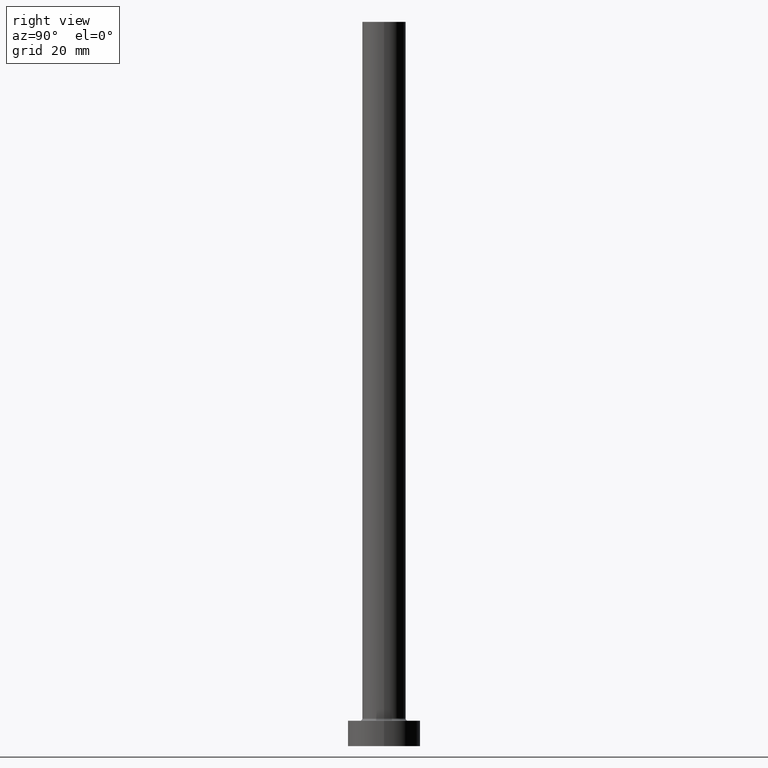
[diagram: clean part render]
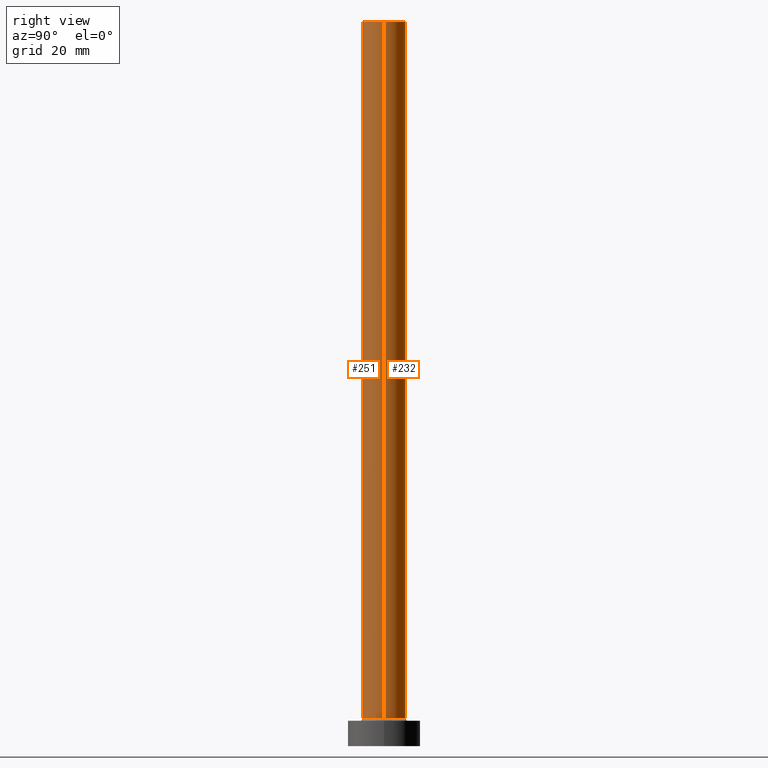
[diagram: same view with one multi-face feature highlighted, each face labeled with its STEP entity id]
A machine part, right view. The highlighted faces form ONE feature: a constant-radius fillet chain: 2 tangent blend faces with common blend radius 6 mm. The faces share edges in the B-rep.
Their STEP definitions:
[1] entity #232 (Cylinder):
#1 = DIRECTION ( 'NONE',  ( 0.000000000000000000, 0.000000000000000000, 1.000000000000000000 ) ) ;
#4 = VECTOR ( 'NONE', #361, 1000.000000000000000 ) ;
#5 = CIRCLE ( 'NONE', #447, 6.000000000000000888 ) ;
#9 = CARTESIAN_POINT ( 'NONE',  ( 6.000000000000000888, 7.347880794884120722E-16, 200.0000000000000000 ) ) ;
#20 = DIRECTION ( 'NONE',  ( -0.000000000000000000, -0.000000000000000000, -1.000000000000000000 ) ) ;
#21 = VERTEX_POINT ( 'NONE', #141 ) ;
#40 = EDGE_CURVE ( 'NONE', #392, #21, #237, .T. ) ;
#55 = CARTESIAN_POINT ( 'NONE',  ( -6.000000000000000888, 0.000000000000000000, 200.0000000000000000 ) ) ;
#90 = CARTESIAN_POINT ( 'NONE',  ( 6.000000000000000888, 7.347880794884120722E-16, 200.0000000000000000 ) ) ;
#117 = AXIS2_PLACEMENT_3D ( 'NONE', #266, #20, #443 ) ;
#141 = CARTESIAN_POINT ( 'NONE',  ( -6.000000000000000888, 0.000000000000000000, 7.700000000000012612 ) ) ;
#143 = LINE ( 'NONE', #288, #4 ) ;
#153 = LINE ( 'NONE', #90, #176 ) ;
#176 = VECTOR ( 'NONE', #196, 1000.000000000000000 ) ;
#196 = DIRECTION ( 'NONE',  ( -0.000000000000000000, -0.000000000000000000, -1.000000000000000000 ) ) ;
#197 = VERTEX_POINT ( 'NONE', #9 ) ;
#201 = EDGE_CURVE ( 'NONE', #234, #21, #143, .T. ) ;
#205 = CARTESIAN_POINT ( 'NONE',  ( 0.000000000000000000, 0.000000000000000000, 7.700000000000012612 ) ) ;
#207 = ORIENTED_EDGE ( 'NONE', *, *, #40, .T. ) ;
#228 = CARTESIAN_POINT ( 'NONE',  ( 6.000000000000000888, 7.347880794884120722E-16, 7.700000000000012612 ) ) ;
#232 = ADVANCED_FACE ( 'NONE', ( #441 ), #379, .T. ) ;
#234 = VERTEX_POINT ( 'NONE', #55 ) ;
#236 = ORIENTED_EDGE ( 'NONE', *, *, #436, .F. ) ;
#237 = CIRCLE ( 'NONE', #402, 6.000000000000000888 ) ;
#245 = CARTESIAN_POINT ( 'NONE',  ( 0.000000000000000000, 0.000000000000000000, 200.0000000000000000 ) ) ;
#266 = CARTESIAN_POINT ( 'NONE',  ( 0.000000000000000000, 0.000000000000000000, 200.0000000000000000 ) ) ;
#270 = EDGE_CURVE ( 'NONE', #197, #392, #153, .T. ) ;
#288 = CARTESIAN_POINT ( 'NONE',  ( -6.000000000000000888, 0.000000000000000000, 200.0000000000000000 ) ) ;
#312 = ORIENTED_EDGE ( 'NONE', *, *, #270, .T. ) ;
#337 = EDGE_LOOP ( 'NONE', ( #236, #312, #207, #386 ) ) ;
#344 = DIRECTION ( 'NONE',  ( 0.000000000000000000, 0.000000000000000000, 1.000000000000000000 ) ) ;
#361 = DIRECTION ( 'NONE',  ( -0.000000000000000000, -0.000000000000000000, -1.000000000000000000 ) ) ;
#379 = CYLINDRICAL_SURFACE ( 'NONE', #117, 6.000000000000000888 ) ;
#386 = ORIENTED_EDGE ( 'NONE', *, *, #201, .F. ) ;
#390 = DIRECTION ( 'NONE',  ( 1.000000000000000000, 0.000000000000000000, 0.000000000000000000 ) ) ;
#392 = VERTEX_POINT ( 'NONE', #228 ) ;
#402 = AXIS2_PLACEMENT_3D ( 'NONE', #205, #344, #390 ) ;
#436 = EDGE_CURVE ( 'NONE', #197, #234, #5, .T. ) ;
#441 = FACE_OUTER_BOUND ( 'NONE', #337, .T. ) ;
#443 = DIRECTION ( 'NONE',  ( -1.000000000000000000, 0.000000000000000000, 0.000000000000000000 ) ) ;
#447 = AXIS2_PLACEMENT_3D ( 'NONE', #245, #1, #460 ) ;
#460 = DIRECTION ( 'NONE',  ( 1.000000000000000000, 0.000000000000000000, 0.000000000000000000 ) ) ;
[2] entity #251 (Cylinder):
#4 = VECTOR ( 'NONE', #361, 1000.000000000000000 ) ;
#6 = EDGE_CURVE ( 'NONE', #21, #392, #407, .T. ) ;
#9 = CARTESIAN_POINT ( 'NONE',  ( 6.000000000000000888, 7.347880794884120722E-16, 200.0000000000000000 ) ) ;
#21 = VERTEX_POINT ( 'NONE', #141 ) ;
#28 = ORIENTED_EDGE ( 'NONE', *, *, #129, .F. ) ;
#32 = CARTESIAN_POINT ( 'NONE',  ( 0.000000000000000000, 0.000000000000000000, 7.700000000000012612 ) ) ;
#48 = AXIS2_PLACEMENT_3D ( 'NONE', #73, #220, #434 ) ;
#55 = CARTESIAN_POINT ( 'NONE',  ( -6.000000000000000888, 0.000000000000000000, 200.0000000000000000 ) ) ;
#64 = DIRECTION ( 'NONE',  ( 1.000000000000000000, 0.000000000000000000, 0.000000000000000000 ) ) ;
#71 = DIRECTION ( 'NONE',  ( 0.000000000000000000, 0.000000000000000000, 1.000000000000000000 ) ) ;
#73 = CARTESIAN_POINT ( 'NONE',  ( 0.000000000000000000, 0.000000000000000000, 200.0000000000000000 ) ) ;
#88 = CARTESIAN_POINT ( 'NONE',  ( 0.000000000000000000, 0.000000000000000000, 200.0000000000000000 ) ) ;
#90 = CARTESIAN_POINT ( 'NONE',  ( 6.000000000000000888, 7.347880794884120722E-16, 200.0000000000000000 ) ) ;
#93 = FACE_OUTER_BOUND ( 'NONE', #166, .T. ) ;
#119 = DIRECTION ( 'NONE',  ( -0.000000000000000000, -0.000000000000000000, -1.000000000000000000 ) ) ;
#129 = EDGE_CURVE ( 'NONE', #234, #197, #373, .T. ) ;
#132 = AXIS2_PLACEMENT_3D ( 'NONE', #88, #119, #336 ) ;
#141 = CARTESIAN_POINT ( 'NONE',  ( -6.000000000000000888, 0.000000000000000000, 7.700000000000012612 ) ) ;
#143 = LINE ( 'NONE', #288, #4 ) ;
#153 = LINE ( 'NONE', #90, #176 ) ;
#157 = ORIENTED_EDGE ( 'NONE', *, *, #6, .T. ) ;
#166 = EDGE_LOOP ( 'NONE', ( #168, #28, #193, #157 ) ) ;
#168 = ORIENTED_EDGE ( 'NONE', *, *, #270, .F. ) ;
#176 = VECTOR ( 'NONE', #196, 1000.000000000000000 ) ;
#193 = ORIENTED_EDGE ( 'NONE', *, *, #201, .T. ) ;
#196 = DIRECTION ( 'NONE',  ( -0.000000000000000000, -0.000000000000000000, -1.000000000000000000 ) ) ;
#197 = VERTEX_POINT ( 'NONE', #9 ) ;
#201 = EDGE_CURVE ( 'NONE', #234, #21, #143, .T. ) ;
#220 = DIRECTION ( 'NONE',  ( 0.000000000000000000, 0.000000000000000000, 1.000000000000000000 ) ) ;
#228 = CARTESIAN_POINT ( 'NONE',  ( 6.000000000000000888, 7.347880794884120722E-16, 7.700000000000012612 ) ) ;
#234 = VERTEX_POINT ( 'NONE', #55 ) ;
#251 = ADVANCED_FACE ( 'NONE', ( #93 ), #334, .T. ) ;
#270 = EDGE_CURVE ( 'NONE', #197, #392, #153, .T. ) ;
#288 = CARTESIAN_POINT ( 'NONE',  ( -6.000000000000000888, 0.000000000000000000, 200.0000000000000000 ) ) ;
#334 = CYLINDRICAL_SURFACE ( 'NONE', #132, 6.000000000000000888 ) ;
#336 = DIRECTION ( 'NONE',  ( -1.000000000000000000, 0.000000000000000000, 0.000000000000000000 ) ) ;
#346 = AXIS2_PLACEMENT_3D ( 'NONE', #32, #71, #64 ) ;
#361 = DIRECTION ( 'NONE',  ( -0.000000000000000000, -0.000000000000000000, -1.000000000000000000 ) ) ;
#373 = CIRCLE ( 'NONE', #48, 6.000000000000000888 ) ;
#392 = VERTEX_POINT ( 'NONE', #228 ) ;
#407 = CIRCLE ( 'NONE', #346, 6.000000000000000888 ) ;
#434 = DIRECTION ( 'NONE',  ( 1.000000000000000000, 0.000000000000000000, 0.000000000000000000 ) ) ;